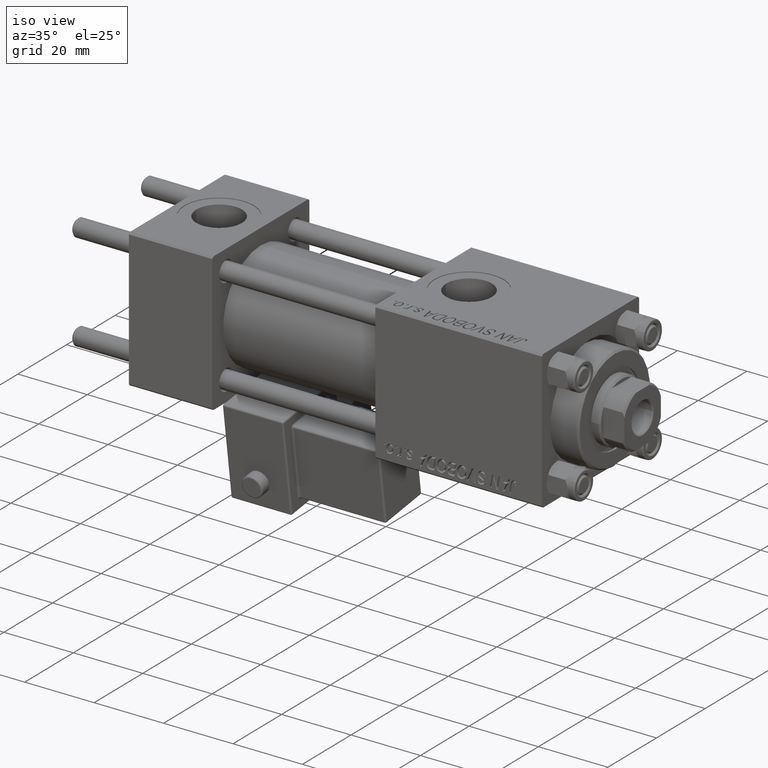
[diagram: clean part render]
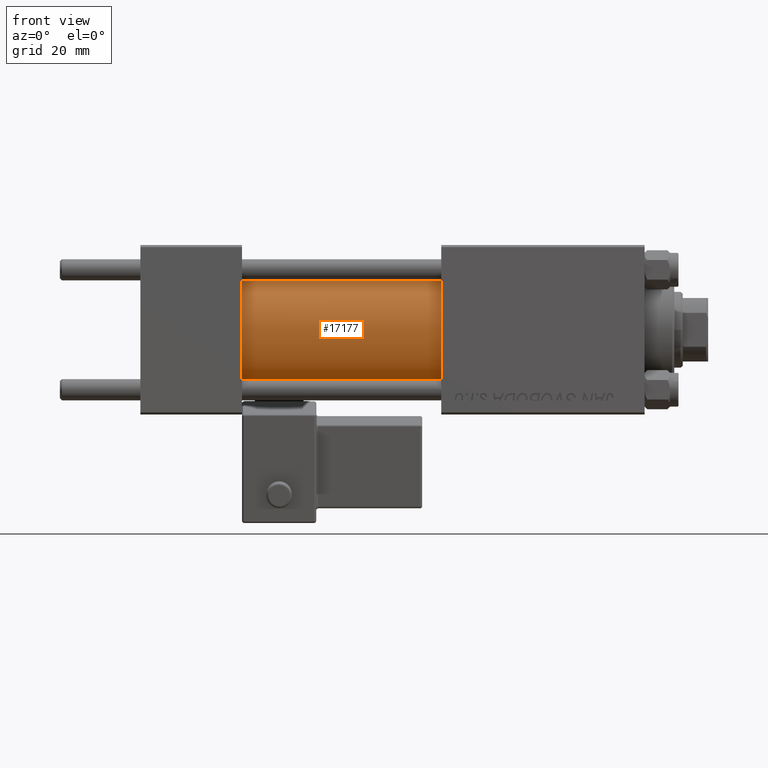
[diagram: tour spotlight — one face highlighted and labeled with its STEP entity id]
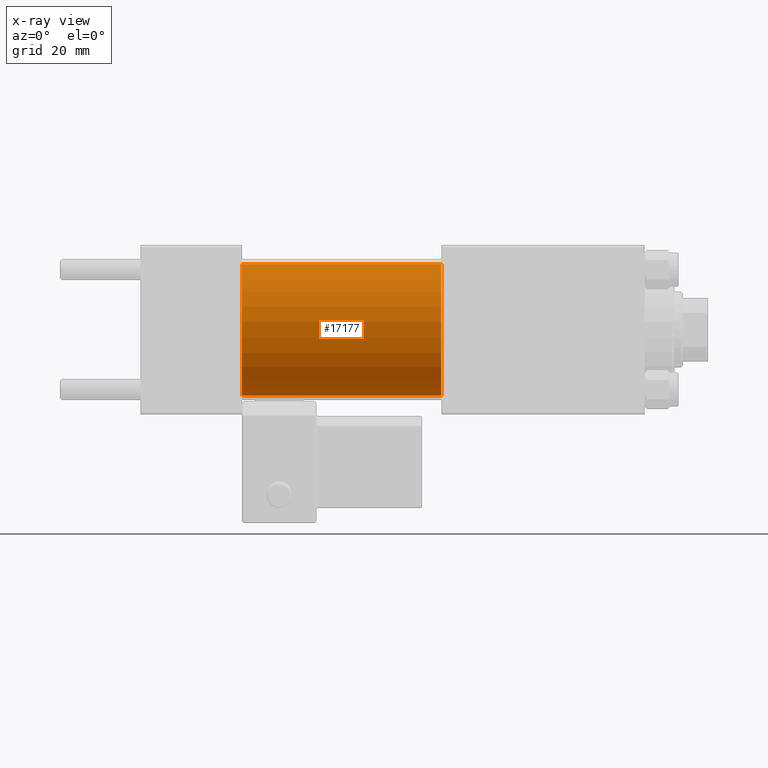
[diagram: x-ray of the same camera — body ghosted, this tour face saturated]
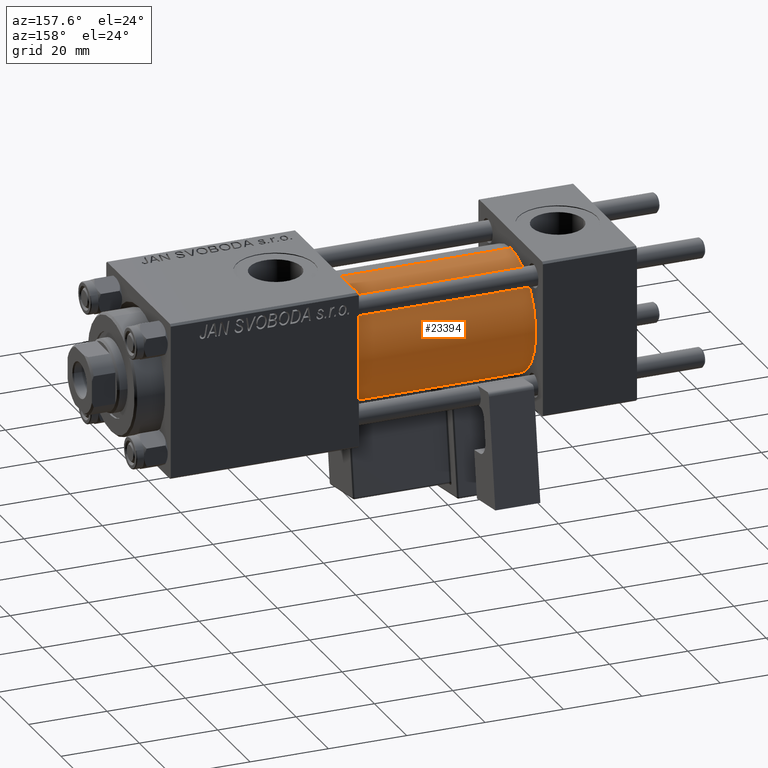
[diagram: tour spotlight — one face highlighted and labeled with its STEP entity id]
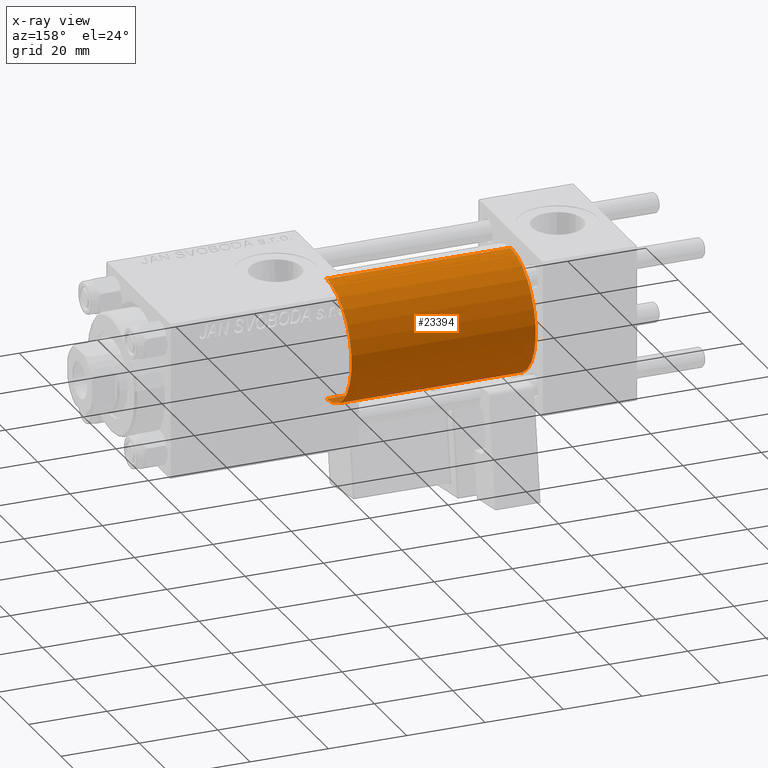
[diagram: x-ray of the same camera — body ghosted, this tour face saturated]
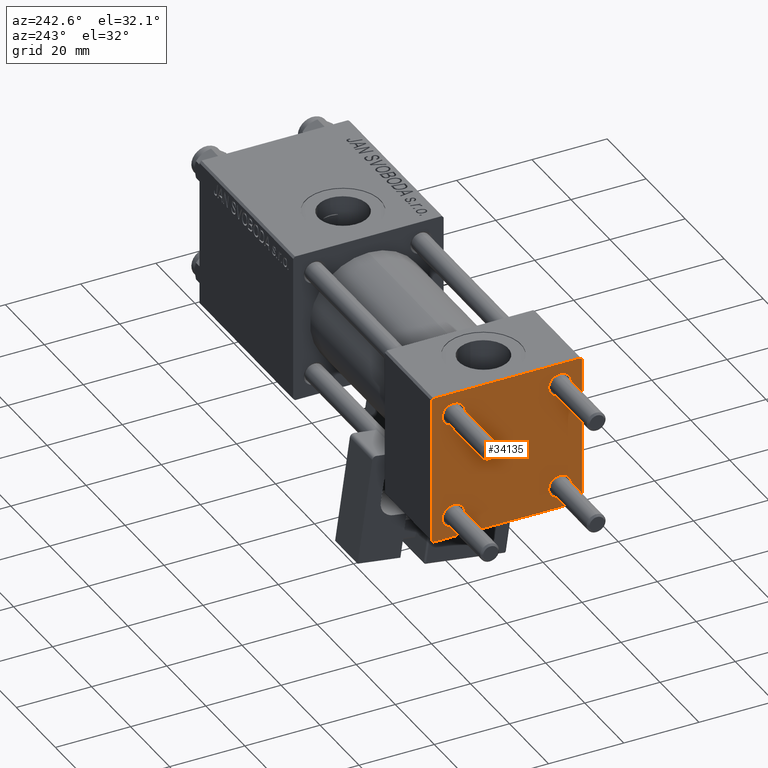
[diagram: tour spotlight — one face highlighted and labeled with its STEP entity id]
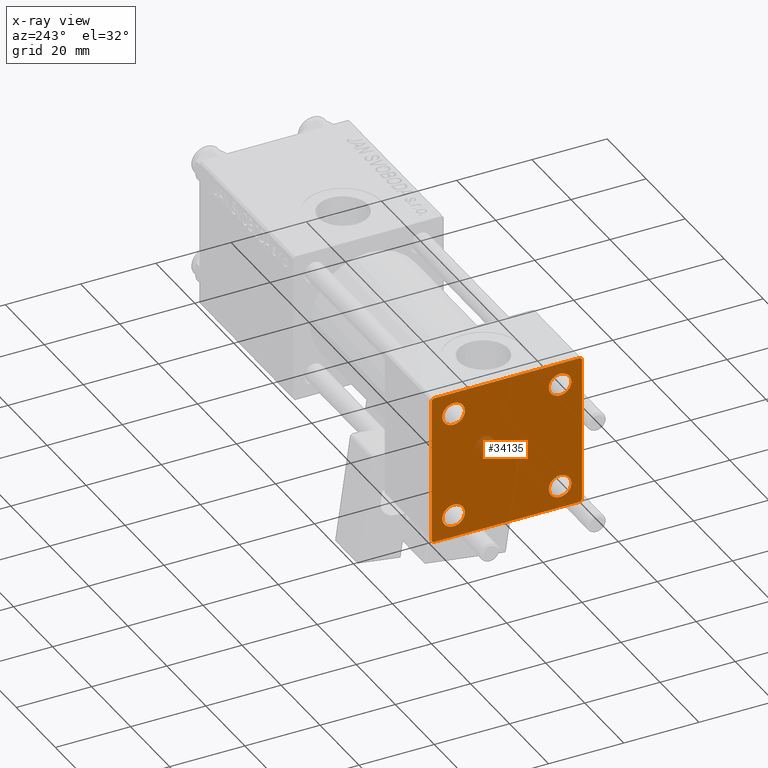
[diagram: x-ray of the same camera — body ghosted, this tour face saturated]
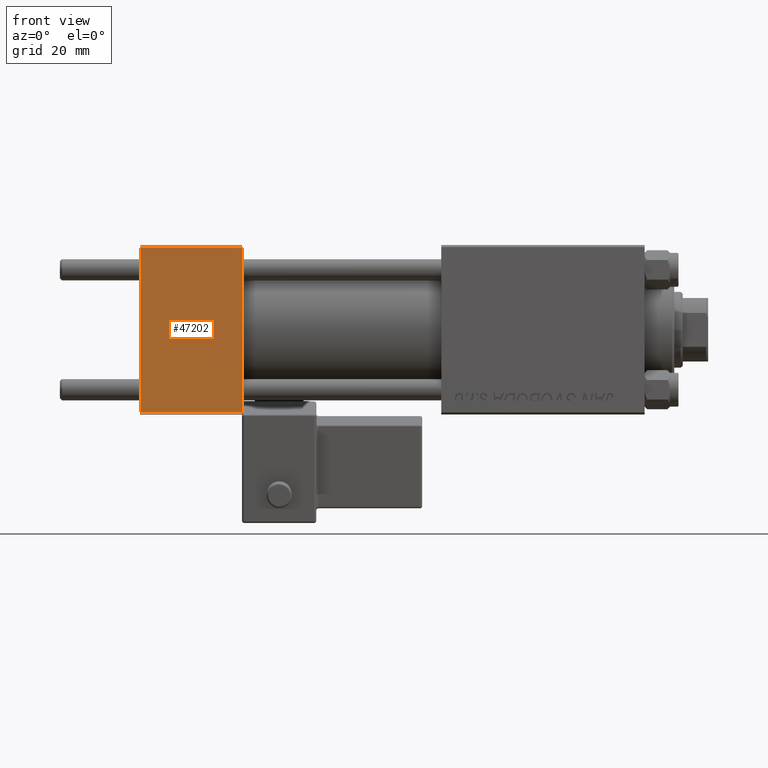
[diagram: tour spotlight — one face highlighted and labeled with its STEP entity id]
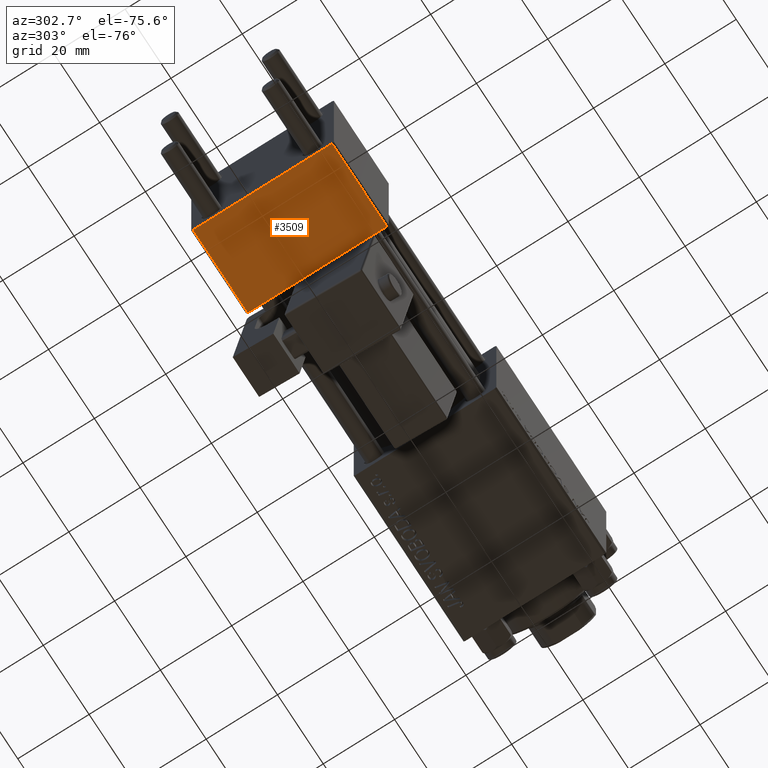
[diagram: tour spotlight — one face highlighted and labeled with its STEP entity id]
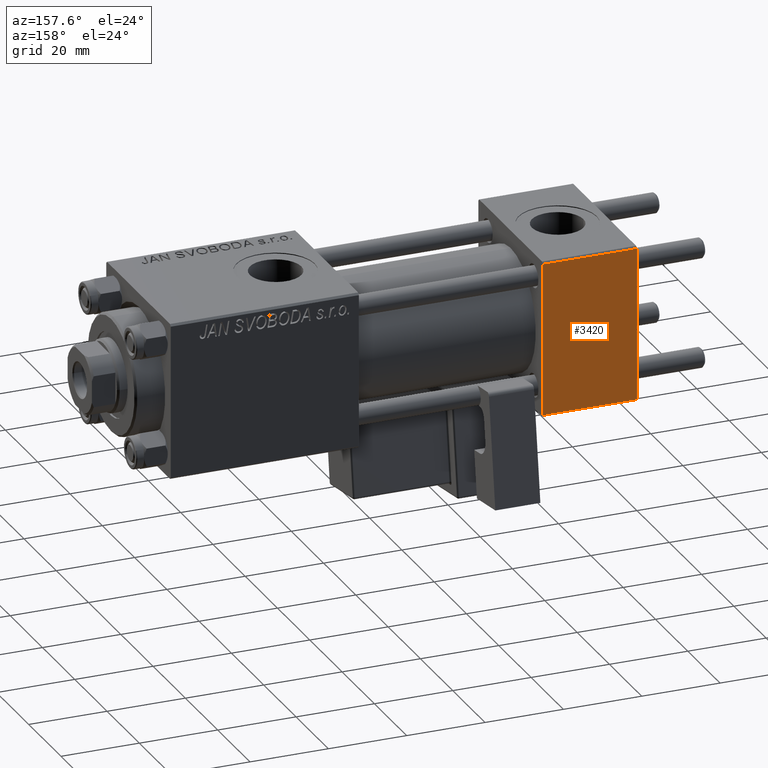
[diagram: tour spotlight — one face highlighted and labeled with its STEP entity id]
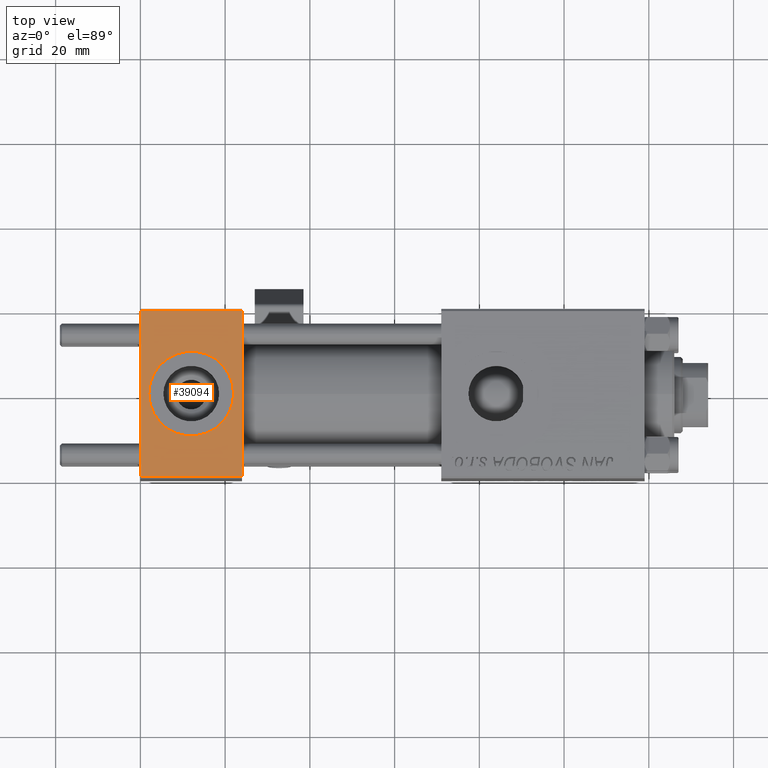
[diagram: tour spotlight — one face highlighted and labeled with its STEP entity id]
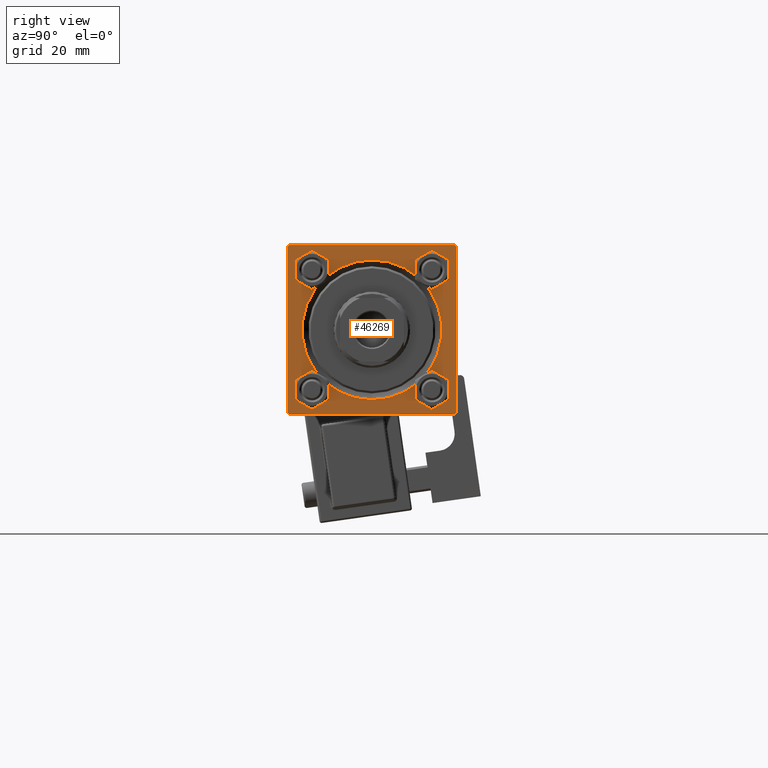
[diagram: tour spotlight — one face highlighted and labeled with its STEP entity id]
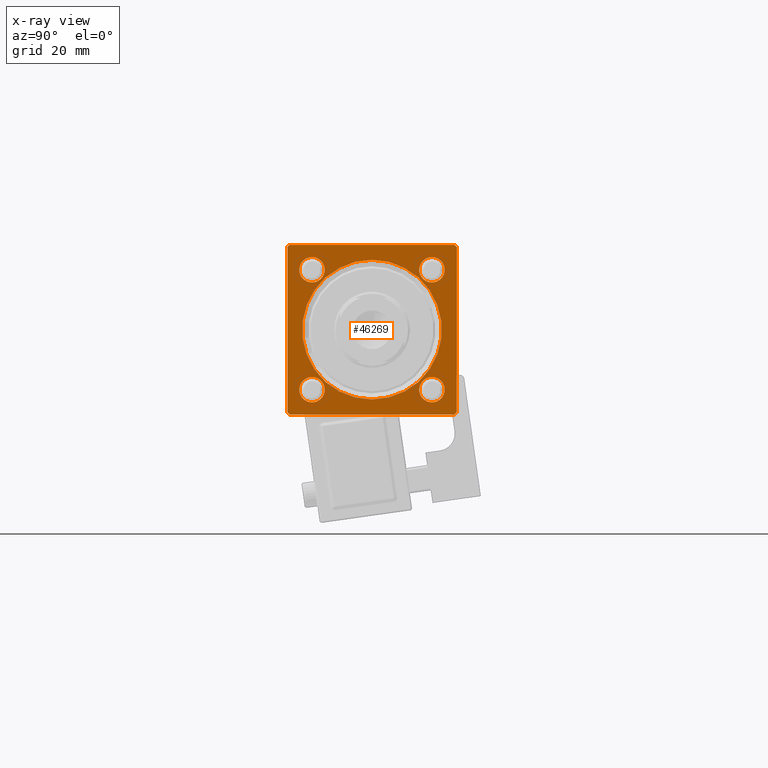
[diagram: x-ray of the same camera — body ghosted, this tour face saturated]
A machine part: a face-by-face anatomy tour. The part has 1207 B-rep faces; the first image is the clean iso view, then the 8 largest visible faces are spotlighted one at a time (largest first), each with its STEP entity span.

Face 1 — front view, entity #17177. An x-ray twin of the same camera follows (body ghosted, this face saturated) — the face is partly hidden behind the body. In plain terms, the highlighted cylindrical surface (partial cylindrical patch) has radius 15.5 mm, axis along (-1, -0, -0).
Definition (entity closure, byte-faithful):
#2293 = DIRECTION ( 'NONE',  ( -1.000000000000000000, -0.000000000000000000, -0.000000000000000000 ) ) ;
#5472 = CARTESIAN_POINT ( 'NONE',  ( 71.00000000000001421, 0.000000000000000000, 0.000000000000000000 ) ) ;
#6336 = CARTESIAN_POINT ( 'NONE',  ( 24.00000000000000000, 0.000000000000000000, 15.50000000000000000 ) ) ;
#7775 = CIRCLE ( 'NONE', #43846, 15.50000000000000000 ) ;
#8959 = EDGE_CURVE ( 'NONE', #27346, #49787, #7775, .T. ) ;
#9940 = CARTESIAN_POINT ( 'NONE',  ( 71.00000000000001421, 1.898202538678397557E-15, -15.50000000000000000 ) ) ;
#11467 = DIRECTION ( 'NONE',  ( 1.000000000000000000, 0.000000000000000000, 0.000000000000000000 ) ) ;
#12575 = AXIS2_PLACEMENT_3D ( 'NONE', #5472, #2293, #33553 ) ;
#13594 = CYLINDRICAL_SURFACE ( 'NONE', #12575, 15.50000000000000000 ) ;
#13769 = DIRECTION ( 'NONE',  ( -1.000000000000000000, -0.000000000000000000, -0.000000000000000000 ) ) ;
#14039 = ORIENTED_EDGE ( 'NONE', *, *, #19758, .F. ) ;
#14819 = CARTESIAN_POINT ( 'NONE',  ( 24.00000000000000000, 1.898202538678397557E-15, -15.50000000000000000 ) ) ;
#14871 = CARTESIAN_POINT ( 'NONE',  ( 24.00000000000000000, 0.000000000000000000, 0.000000000000000000 ) ) ;
#17177 = ADVANCED_FACE ( 'NONE', ( #41462 ), #13594, .T. ) ;
#18467 = CARTESIAN_POINT ( 'NONE',  ( 71.00000000000001421, 0.000000000000000000, 15.50000000000000000 ) ) ;
#19758 = EDGE_CURVE ( 'NONE', #48128, #19796, #38598, .T. ) ;
#19796 = VERTEX_POINT ( 'NONE', #47126 ) ;
#20109 = ORIENTED_EDGE ( 'NONE', *, *, #38588, .F. ) ;
#20785 = ORIENTED_EDGE ( 'NONE', *, *, #8959, .T. ) ;
#21512 = LINE ( 'NONE', #9940, #33597 ) ;
#24381 = CARTESIAN_POINT ( 'NONE',  ( 71.00000000000001421, 0.000000000000000000, 15.50000000000000000 ) ) ;
#27346 = VERTEX_POINT ( 'NONE', #6336 ) ;
#29275 = EDGE_LOOP ( 'NONE', ( #20109, #14039, #37625, #20785 ) ) ;
#30039 = DIRECTION ( 'NONE',  ( 0.000000000000000000, 0.000000000000000000, -1.000000000000000000 ) ) ;
#30903 = DIRECTION ( 'NONE',  ( 0.000000000000000000, 0.000000000000000000, 1.000000000000000000 ) ) ;
#33553 = DIRECTION ( 'NONE',  ( 0.000000000000000000, 0.000000000000000000, 1.000000000000000000 ) ) ;
#33597 = VECTOR ( 'NONE', #37029, 1000.000000000000000 ) ;
#37029 = DIRECTION ( 'NONE',  ( -1.000000000000000000, -0.000000000000000000, -0.000000000000000000 ) ) ;
#37625 = ORIENTED_EDGE ( 'NONE', *, *, #40391, .T. ) ;
#37739 = AXIS2_PLACEMENT_3D ( 'NONE', #38715, #41885, #30039 ) ;
#38588 = EDGE_CURVE ( 'NONE', #19796, #49787, #21512, .T. ) ;
#38598 = CIRCLE ( 'NONE', #37739, 15.50000000000000000 ) ;
#38715 = CARTESIAN_POINT ( 'NONE',  ( 71.00000000000001421, 0.000000000000000000, 0.000000000000000000 ) ) ;
#40391 = EDGE_CURVE ( 'NONE', #48128, #27346, #45570, .T. ) ;
#41462 = FACE_OUTER_BOUND ( 'NONE', #29275, .T. ) ;
#41885 = DIRECTION ( 'NONE',  ( 1.000000000000000000, 0.000000000000000000, 0.000000000000000000 ) ) ;
#43733 = VECTOR ( 'NONE', #13769, 1000.000000000000000 ) ;
#43846 = AXIS2_PLACEMENT_3D ( 'NONE', #14871, #11467, #30903 ) ;
#45570 = LINE ( 'NONE', #18467, #43733 ) ;
#47126 = CARTESIAN_POINT ( 'NONE',  ( 71.00000000000001421, 1.898202538678397557E-15, -15.50000000000000000 ) ) ;
#48128 = VERTEX_POINT ( 'NONE', #24381 ) ;
#49787 = VERTEX_POINT ( 'NONE', #14819 ) ;

Face 2 — auxiliary view, entity #23394. An x-ray twin of the same camera follows (body ghosted, this face saturated) — the face is partly hidden behind the body. In plain terms, the highlighted cylindrical surface (partial cylindrical patch) has radius 15.5 mm, axis along (-1, -0, -0).
Definition (entity closure, byte-faithful):
#1647 = ORIENTED_EDGE ( 'NONE', *, *, #6476, .F. ) ;
#3208 = CYLINDRICAL_SURFACE ( 'NONE', #11853, 15.50000000000000000 ) ;
#5509 = CARTESIAN_POINT ( 'NONE',  ( 24.00000000000000000, 0.000000000000000000, 0.000000000000000000 ) ) ;
#6336 = CARTESIAN_POINT ( 'NONE',  ( 24.00000000000000000, 0.000000000000000000, 15.50000000000000000 ) ) ;
#6476 = EDGE_CURVE ( 'NONE', #19796, #48128, #7657, .T. ) ;
#7657 = CIRCLE ( 'NONE', #14358, 15.50000000000000000 ) ;
#9940 = CARTESIAN_POINT ( 'NONE',  ( 71.00000000000001421, 1.898202538678397557E-15, -15.50000000000000000 ) ) ;
#11853 = AXIS2_PLACEMENT_3D ( 'NONE', #47074, #18955, #46566 ) ;
#13769 = DIRECTION ( 'NONE',  ( -1.000000000000000000, -0.000000000000000000, -0.000000000000000000 ) ) ;
#14358 = AXIS2_PLACEMENT_3D ( 'NONE', #43053, #50676, #22534 ) ;
#14819 = CARTESIAN_POINT ( 'NONE',  ( 24.00000000000000000, 1.898202538678397557E-15, -15.50000000000000000 ) ) ;
#15066 = ORIENTED_EDGE ( 'NONE', *, *, #38588, .T. ) ;
#18467 = CARTESIAN_POINT ( 'NONE',  ( 71.00000000000001421, 0.000000000000000000, 15.50000000000000000 ) ) ;
#18955 = DIRECTION ( 'NONE',  ( -1.000000000000000000, -0.000000000000000000, -0.000000000000000000 ) ) ;
#19796 = VERTEX_POINT ( 'NONE', #47126 ) ;
#21512 = LINE ( 'NONE', #9940, #33597 ) ;
#22534 = DIRECTION ( 'NONE',  ( 0.000000000000000000, 0.000000000000000000, -1.000000000000000000 ) ) ;
#23394 = ADVANCED_FACE ( 'NONE', ( #46814 ), #3208, .T. ) ;
#24381 = CARTESIAN_POINT ( 'NONE',  ( 71.00000000000001421, 0.000000000000000000, 15.50000000000000000 ) ) ;
#27346 = VERTEX_POINT ( 'NONE', #6336 ) ;
#27643 = EDGE_CURVE ( 'NONE', #49787, #27346, #46401, .T. ) ;
#32311 = EDGE_LOOP ( 'NONE', ( #1647, #15066, #34383, #39902 ) ) ;
#33597 = VECTOR ( 'NONE', #37029, 1000.000000000000000 ) ;
#34383 = ORIENTED_EDGE ( 'NONE', *, *, #27643, .T. ) ;
#37029 = DIRECTION ( 'NONE',  ( -1.000000000000000000, -0.000000000000000000, -0.000000000000000000 ) ) ;
#38588 = EDGE_CURVE ( 'NONE', #19796, #49787, #21512, .T. ) ;
#39902 = ORIENTED_EDGE ( 'NONE', *, *, #40391, .F. ) ;
#40391 = EDGE_CURVE ( 'NONE', #48128, #27346, #45570, .T. ) ;
#43053 = CARTESIAN_POINT ( 'NONE',  ( 71.00000000000001421, 0.000000000000000000, 0.000000000000000000 ) ) ;
#43733 = VECTOR ( 'NONE', #13769, 1000.000000000000000 ) ;
#45570 = LINE ( 'NONE', #18467, #43733 ) ;
#46401 = CIRCLE ( 'NONE', #50610, 15.50000000000000000 ) ;
#46566 = DIRECTION ( 'NONE',  ( 0.000000000000000000, 0.000000000000000000, 1.000000000000000000 ) ) ;
#46669 = DIRECTION ( 'NONE',  ( 1.000000000000000000, 0.000000000000000000, 0.000000000000000000 ) ) ;
#46814 = FACE_OUTER_BOUND ( 'NONE', #32311, .T. ) ;
#47074 = CARTESIAN_POINT ( 'NONE',  ( 71.00000000000001421, 0.000000000000000000, 0.000000000000000000 ) ) ;
#47126 = CARTESIAN_POINT ( 'NONE',  ( 71.00000000000001421, 1.898202538678397557E-15, -15.50000000000000000 ) ) ;
#48128 = VERTEX_POINT ( 'NONE', #24381 ) ;
#49628 = DIRECTION ( 'NONE',  ( 0.000000000000000000, 0.000000000000000000, 1.000000000000000000 ) ) ;
#49787 = VERTEX_POINT ( 'NONE', #14819 ) ;
#50610 = AXIS2_PLACEMENT_3D ( 'NONE', #5509, #46669, #49628 ) ;
#50676 = DIRECTION ( 'NONE',  ( 1.000000000000000000, 0.000000000000000000, 0.000000000000000000 ) ) ;

Face 3 — auxiliary view, entity #34135. An x-ray twin of the same camera follows (body ghosted, this face saturated) — the face is partly hidden behind the body. In plain terms, the highlighted planar face has unit normal (-1, 0, 0).
Definition (entity closure, byte-faithful):
#91 = CARTESIAN_POINT ( 'NONE',  ( 0.000000000000000000, -14.14999999999999503, -14.15000000000000391 ) ) ;
#675 = VERTEX_POINT ( 'NONE', #10638 ) ;
#874 = AXIS2_PLACEMENT_3D ( 'NONE', #48139, #23954, #9497 ) ;
#1052 = VERTEX_POINT ( 'NONE', #17026 ) ;
#1295 = DIRECTION ( 'NONE',  ( 0.000000000000000000, 0.7071067811865425767, -0.7071067811865525687 ) ) ;
#2224 = CARTESIAN_POINT ( 'NONE',  ( 0.000000000000000000, -20.00000000000000355, 19.99999999999998934 ) ) ;
#2661 = CARTESIAN_POINT ( 'NONE',  ( 0.000000000000000000, 0.000000000000000000, 0.000000000000000000 ) ) ;
#2933 = FACE_OUTER_BOUND ( 'NONE', #46616, .T. ) ;
#3003 = CARTESIAN_POINT ( 'NONE',  ( 0.000000000000000000, -14.14999999999999503, -11.15000000000000391 ) ) ;
#3187 = FACE_BOUND ( 'NONE', #12297, .T. ) ;
#3279 = DIRECTION ( 'NONE',  ( 1.000000000000000000, 0.000000000000000000, 0.000000000000000000 ) ) ;
#3709 = VERTEX_POINT ( 'NONE', #32994 ) ;
#4303 = DIRECTION ( 'NONE',  ( 0.000000000000000000, 0.000000000000000000, 1.000000000000000000 ) ) ;
#4359 = CIRCLE ( 'NONE', #37066, 3.000000000000000888 ) ;
#4649 = CARTESIAN_POINT ( 'NONE',  ( 0.000000000000000000, -14.14999999999999503, 17.15000000000000568 ) ) ;
#5946 = CARTESIAN_POINT ( 'NONE',  ( -0.000000000000000000, 19.74999999999986855, -19.75000000000014211 ) ) ;
#6201 = AXIS2_PLACEMENT_3D ( 'NONE', #30860, #34812, #46648 ) ;
#6215 = EDGE_CURVE ( 'NONE', #1052, #7799, #13538, .T. ) ;
#6589 = DIRECTION ( 'NONE',  ( 1.000000000000000000, 0.000000000000000000, 0.000000000000000000 ) ) ;
#7001 = ORIENTED_EDGE ( 'NONE', *, *, #17641, .T. ) ;
#7799 = VERTEX_POINT ( 'NONE', #3003 ) ;
#8000 = VERTEX_POINT ( 'NONE', #39495 ) ;
#8751 = CIRCLE ( 'NONE', #6201, 3.000000000000000888 ) ;
#8835 = EDGE_CURVE ( 'NONE', #28650, #35294, #27481, .T. ) ;
#9497 = DIRECTION ( 'NONE',  ( 0.000000000000000000, 0.000000000000000000, 1.000000000000000000 ) ) ;
#9704 = CARTESIAN_POINT ( 'NONE',  ( 0.000000000000000000, -19.75000000000020961, -19.74999999999979394 ) ) ;
#9732 = DIRECTION ( 'NONE',  ( 1.000000000000000000, 0.000000000000000000, 0.000000000000000000 ) ) ;
#9934 = EDGE_CURVE ( 'NONE', #8000, #3709, #33708, .T. ) ;
#10182 = DIRECTION ( 'NONE',  ( 1.000000000000000000, 0.000000000000000000, 0.000000000000000000 ) ) ;
#10429 = VECTOR ( 'NONE', #41284, 1000.000000000000000 ) ;
#10537 = CARTESIAN_POINT ( 'NONE',  ( 0.000000000000000000, -14.14999999999999503, -14.15000000000000391 ) ) ;
#10638 = CARTESIAN_POINT ( 'NONE',  ( 0.000000000000000000, 19.50000000000000000, 20.00000000000000000 ) ) ;
#11055 = DIRECTION ( 'NONE',  ( -0.000000000000000000, 0.000000000000000000, 1.000000000000000000 ) ) ;
#12297 = EDGE_LOOP ( 'NONE', ( #48041, #15992 ) ) ;
#12485 = VERTEX_POINT ( 'NONE', #40502 ) ;
#12800 = EDGE_CURVE ( 'NONE', #675, #28650, #44648, .T. ) ;
#12872 = LINE ( 'NONE', #9704, #44598 ) ;
#13092 = AXIS2_PLACEMENT_3D ( 'NONE', #43983, #28206, #4303 ) ;
#13538 = CIRCLE ( 'NONE', #36198, 3.000000000000000888 ) ;
#15413 = ORIENTED_EDGE ( 'NONE', *, *, #37094, .T. ) ;
#15415 = VECTOR ( 'NONE', #35575, 1000.000000000000000 ) ;
#15507 = DIRECTION ( 'NONE',  ( -1.000000000000000000, 0.000000000000000000, -0.000000000000000000 ) ) ;
#15992 = ORIENTED_EDGE ( 'NONE', *, *, #6215, .T. ) ;
#17026 = CARTESIAN_POINT ( 'NONE',  ( 0.000000000000000000, -14.14999999999999503, -17.15000000000000568 ) ) ;
#17033 = CARTESIAN_POINT ( 'NONE',  ( 0.000000000000000000, 19.50000000000000711, -20.00000000000000711 ) ) ;
#17641 = EDGE_CURVE ( 'NONE', #35294, #30594, #18007, .T. ) ;
#17739 = CARTESIAN_POINT ( 'NONE',  ( 0.000000000000000000, 14.14999999999999858, -17.15000000000000213 ) ) ;
#18007 = LINE ( 'NONE', #5946, #45368 ) ;
#18659 = ORIENTED_EDGE ( 'NONE', *, *, #20969, .T. ) ;
#18745 = ORIENTED_EDGE ( 'NONE', *, *, #24324, .T. ) ;
#19779 = EDGE_LOOP ( 'NONE', ( #18659, #43284 ) ) ;
#20104 = VERTEX_POINT ( 'NONE', #21588 ) ;
#20268 = AXIS2_PLACEMENT_3D ( 'NONE', #45417, #10182, #41212 ) ;
#20419 = VERTEX_POINT ( 'NONE', #43369 ) ;
#20969 = EDGE_CURVE ( 'NONE', #20104, #26822, #24327, .T. ) ;
#21484 = CIRCLE ( 'NONE', #13092, 3.000000000000000888 ) ;
#21588 = CARTESIAN_POINT ( 'NONE',  ( 0.000000000000000000, 14.14999999999999858, -11.15000000000000036 ) ) ;
#21713 = DIRECTION ( 'NONE',  ( -0.000000000000000000, 0.7071067811865500152, 0.7071067811865451302 ) ) ;
#22677 = EDGE_LOOP ( 'NONE', ( #31371, #15413 ) ) ;
#23390 = CARTESIAN_POINT ( 'NONE',  ( 0.000000000000000000, 20.00000000000000000, -19.50000000000002132 ) ) ;
#23427 = ORIENTED_EDGE ( 'NONE', *, *, #12800, .T. ) ;
#23606 = DIRECTION ( 'NONE',  ( 1.000000000000000000, 0.000000000000000000, 0.000000000000000000 ) ) ;
#23954 = DIRECTION ( 'NONE',  ( 1.000000000000000000, 0.000000000000000000, 0.000000000000000000 ) ) ;
#24044 = EDGE_CURVE ( 'NONE', #7799, #1052, #30334, .T. ) ;
#24324 = EDGE_CURVE ( 'NONE', #3709, #8000, #4359, .T. ) ;
#24327 = CIRCLE ( 'NONE', #874, 3.000000000000000888 ) ;
#24504 = EDGE_LOOP ( 'NONE', ( #48173, #18745 ) ) ;
#25239 = CARTESIAN_POINT ( 'NONE',  ( 0.000000000000000000, 20.00000000000000000, -20.00000000000000711 ) ) ;
#25279 = VERTEX_POINT ( 'NONE', #4649 ) ;
#26822 = VERTEX_POINT ( 'NONE', #17739 ) ;
#26976 = CARTESIAN_POINT ( 'NONE',  ( 0.000000000000000000, 20.00000000000000000, 19.49999999999999289 ) ) ;
#27481 = LINE ( 'NONE', #47706, #27889 ) ;
#27889 = VECTOR ( 'NONE', #43271, 1000.000000000000000 ) ;
#28206 = DIRECTION ( 'NONE',  ( 1.000000000000000000, 0.000000000000000000, 0.000000000000000000 ) ) ;
#28587 = CARTESIAN_POINT ( 'NONE',  ( 0.000000000000000000, -20.00000000000000000, -19.49999999999999645 ) ) ;
#28650 = VERTEX_POINT ( 'NONE', #26976 ) ;
#29086 = ORIENTED_EDGE ( 'NONE', *, *, #29147, .F. ) ;
#29147 = EDGE_CURVE ( 'NONE', #675, #45260, #44230, .T. ) ;
#29748 = EDGE_CURVE ( 'NONE', #25279, #12485, #8751, .T. ) ;
#30334 = CIRCLE ( 'NONE', #40401, 3.000000000000000888 ) ;
#30594 = VERTEX_POINT ( 'NONE', #17033 ) ;
#30860 = CARTESIAN_POINT ( 'NONE',  ( 0.000000000000000000, -14.14999999999999503, 14.15000000000000391 ) ) ;
#30997 = EDGE_CURVE ( 'NONE', #30594, #20419, #38120, .T. ) ;
#31272 = VECTOR ( 'NONE', #21713, 1000.000000000000114 ) ;
#31371 = ORIENTED_EDGE ( 'NONE', *, *, #29748, .T. ) ;
#32994 = CARTESIAN_POINT ( 'NONE',  ( 0.000000000000000000, 14.14999999999999858, 11.14999999999999858 ) ) ;
#33327 = CARTESIAN_POINT ( 'NONE',  ( -0.000000000000000000, 19.75000000000013500, 19.74999999999986144 ) ) ;
#33628 = DIRECTION ( 'NONE',  ( 0.000000000000000000, 0.000000000000000000, 1.000000000000000000 ) ) ;
#33708 = CIRCLE ( 'NONE', #20268, 3.000000000000000888 ) ;
#33940 = AXIS2_PLACEMENT_3D ( 'NONE', #2661, #15507, #11055 ) ;
#34135 = ADVANCED_FACE ( 'NONE', ( #43379, #3187, #42856, #51778, #2933 ), #34965, .T. ) ;
#34812 = DIRECTION ( 'NONE',  ( 1.000000000000000000, 0.000000000000000000, 0.000000000000000000 ) ) ;
#34965 = PLANE ( 'NONE',  #33940 ) ;
#35294 = VERTEX_POINT ( 'NONE', #23390 ) ;
#35575 = DIRECTION ( 'NONE',  ( 0.000000000000000000, -1.000000000000000000, -2.602085213965210149E-16 ) ) ;
#36198 = AXIS2_PLACEMENT_3D ( 'NONE', #10537, #6589, #42074 ) ;
#36750 = CARTESIAN_POINT ( 'NONE',  ( 0.000000000000000000, 14.14999999999999858, 14.15000000000000036 ) ) ;
#37066 = AXIS2_PLACEMENT_3D ( 'NONE', #36750, #23606, #51752 ) ;
#37094 = EDGE_CURVE ( 'NONE', #12485, #25279, #21484, .T. ) ;
#37813 = DIRECTION ( 'NONE',  ( 0.000000000000000000, -0.7071067811865401342, 0.7071067811865549002 ) ) ;
#37836 = ORIENTED_EDGE ( 'NONE', *, *, #40658, .T. ) ;
#38028 = CIRCLE ( 'NONE', #41374, 3.000000000000000888 ) ;
#38120 = LINE ( 'NONE', #25239, #10429 ) ;
#38157 = CARTESIAN_POINT ( 'NONE',  ( 0.000000000000000000, -20.00000000000000355, 19.49999999999998224 ) ) ;
#38502 = DIRECTION ( 'NONE',  ( -0.000000000000000000, -0.7071067811865524577, -0.7071067811865426878 ) ) ;
#39261 = DIRECTION ( 'NONE',  ( 0.000000000000000000, 0.000000000000000000, 1.000000000000000000 ) ) ;
#39495 = CARTESIAN_POINT ( 'NONE',  ( 0.000000000000000000, 14.14999999999999858, 17.15000000000000568 ) ) ;
#40401 = AXIS2_PLACEMENT_3D ( 'NONE', #91, #3279, #39261 ) ;
#40502 = CARTESIAN_POINT ( 'NONE',  ( 0.000000000000000000, -14.14999999999999503, 11.15000000000000213 ) ) ;
#40658 = EDGE_CURVE ( 'NONE', #20419, #45143, #12872, .T. ) ;
#41212 = DIRECTION ( 'NONE',  ( 0.000000000000000000, 0.000000000000000000, 1.000000000000000000 ) ) ;
#41284 = DIRECTION ( 'NONE',  ( 0.000000000000000000, -1.000000000000000000, 1.734723475976807094E-16 ) ) ;
#41305 = ORIENTED_EDGE ( 'NONE', *, *, #48859, .F. ) ;
#41374 = AXIS2_PLACEMENT_3D ( 'NONE', #45732, #9732, #33628 ) ;
#42074 = DIRECTION ( 'NONE',  ( 0.000000000000000000, 0.000000000000000000, 1.000000000000000000 ) ) ;
#42602 = VERTEX_POINT ( 'NONE', #38157 ) ;
#42669 = LINE ( 'NONE', #2224, #49889 ) ;
#42856 = FACE_BOUND ( 'NONE', #19779, .T. ) ;
#43271 = DIRECTION ( 'NONE',  ( 0.000000000000000000, 0.000000000000000000, -1.000000000000000000 ) ) ;
#43284 = ORIENTED_EDGE ( 'NONE', *, *, #45011, .T. ) ;
#43369 = CARTESIAN_POINT ( 'NONE',  ( 0.000000000000000000, -19.50000000000000711, -20.00000000000000000 ) ) ;
#43379 = FACE_BOUND ( 'NONE', #22677, .T. ) ;
#43407 = EDGE_CURVE ( 'NONE', #42602, #45260, #46692, .T. ) ;
#43458 = ORIENTED_EDGE ( 'NONE', *, *, #30997, .T. ) ;
#43488 = VECTOR ( 'NONE', #1295, 999.9999999999998863 ) ;
#43983 = CARTESIAN_POINT ( 'NONE',  ( 0.000000000000000000, -14.14999999999999503, 14.15000000000000391 ) ) ;
#44230 = LINE ( 'NONE', #51863, #15415 ) ;
#44598 = VECTOR ( 'NONE', #37813, 1000.000000000000000 ) ;
#44648 = LINE ( 'NONE', #33327, #43488 ) ;
#45011 = EDGE_CURVE ( 'NONE', #26822, #20104, #38028, .T. ) ;
#45143 = VERTEX_POINT ( 'NONE', #28587 ) ;
#45260 = VERTEX_POINT ( 'NONE', #45922 ) ;
#45368 = VECTOR ( 'NONE', #38502, 1000.000000000000000 ) ;
#45417 = CARTESIAN_POINT ( 'NONE',  ( 0.000000000000000000, 14.14999999999999858, 14.15000000000000036 ) ) ;
#45732 = CARTESIAN_POINT ( 'NONE',  ( 0.000000000000000000, 14.14999999999999858, -14.15000000000000036 ) ) ;
#45922 = CARTESIAN_POINT ( 'NONE',  ( 0.000000000000000000, -19.49999999999999289, 19.99999999999998934 ) ) ;
#46616 = EDGE_LOOP ( 'NONE', ( #48429, #7001, #43458, #37836, #41305, #47808, #29086, #23427 ) ) ;
#46648 = DIRECTION ( 'NONE',  ( 0.000000000000000000, 0.000000000000000000, 1.000000000000000000 ) ) ;
#46692 = LINE ( 'NONE', #49850, #31272 ) ;
#47706 = CARTESIAN_POINT ( 'NONE',  ( 0.000000000000000000, 20.00000000000000000, 20.00000000000000000 ) ) ;
#47808 = ORIENTED_EDGE ( 'NONE', *, *, #43407, .T. ) ;
#48041 = ORIENTED_EDGE ( 'NONE', *, *, #24044, .T. ) ;
#48139 = CARTESIAN_POINT ( 'NONE',  ( 0.000000000000000000, 14.14999999999999858, -14.15000000000000036 ) ) ;
#48173 = ORIENTED_EDGE ( 'NONE', *, *, #9934, .T. ) ;
#48429 = ORIENTED_EDGE ( 'NONE', *, *, #8835, .T. ) ;
#48859 = EDGE_CURVE ( 'NONE', #42602, #45143, #42669, .T. ) ;
#49850 = CARTESIAN_POINT ( 'NONE',  ( -0.000000000000000000, -19.74999999999992539, 19.75000000000006395 ) ) ;
#49889 = VECTOR ( 'NONE', #51346, 1000.000000000000000 ) ;
#51346 = DIRECTION ( 'NONE',  ( 0.000000000000000000, 8.673617379884036705E-17, -1.000000000000000000 ) ) ;
#51752 = DIRECTION ( 'NONE',  ( 0.000000000000000000, 0.000000000000000000, 1.000000000000000000 ) ) ;
#51778 = FACE_BOUND ( 'NONE', #24504, .T. ) ;
#51863 = CARTESIAN_POINT ( 'NONE',  ( 0.000000000000000000, 20.00000000000000000, 20.00000000000000000 ) ) ;

Face 4 — front view, entity #47202. In plain terms, the highlighted planar face has unit normal (0, 1, 0).
Definition (entity closure, byte-faithful):
#521 = EDGE_LOOP ( 'NONE', ( #1924, #19279, #46560, #23183 ) ) ;
#1924 = ORIENTED_EDGE ( 'NONE', *, *, #48859, .T. ) ;
#2224 = CARTESIAN_POINT ( 'NONE',  ( 0.000000000000000000, -20.00000000000000355, 19.99999999999998934 ) ) ;
#2401 = CARTESIAN_POINT ( 'NONE',  ( 24.00000000000000000, -20.00000000000000355, 19.49999999999998224 ) ) ;
#5316 = CARTESIAN_POINT ( 'NONE',  ( 24.00000000000000000, -20.00000000000000355, 19.99999999999998934 ) ) ;
#6861 = DIRECTION ( 'NONE',  ( -1.000000000000000000, 0.000000000000000000, 0.000000000000000000 ) ) ;
#8078 = EDGE_CURVE ( 'NONE', #27614, #38458, #36846, .T. ) ;
#8135 = CARTESIAN_POINT ( 'NONE',  ( 24.00000000000000000, -20.00000000000000000, -19.49999999999999645 ) ) ;
#8678 = CARTESIAN_POINT ( 'NONE',  ( 24.00000000000000000, -20.00000000000000000, -19.49999999999999645 ) ) ;
#10919 = CARTESIAN_POINT ( 'NONE',  ( 24.00000000000000000, -20.00000000000000355, 19.49999999999998224 ) ) ;
#17376 = DIRECTION ( 'NONE',  ( 0.000000000000000000, 8.673617379884036705E-17, -1.000000000000000000 ) ) ;
#19279 = ORIENTED_EDGE ( 'NONE', *, *, #22479, .T. ) ;
#22214 = EDGE_CURVE ( 'NONE', #27614, #42602, #33933, .T. ) ;
#22479 = EDGE_CURVE ( 'NONE', #45143, #38458, #45450, .T. ) ;
#23183 = ORIENTED_EDGE ( 'NONE', *, *, #22214, .T. ) ;
#24661 = AXIS2_PLACEMENT_3D ( 'NONE', #40442, #48844, #24664 ) ;
#24664 = DIRECTION ( 'NONE',  ( 0.000000000000000000, -8.673617379884036705E-17, 1.000000000000000000 ) ) ;
#24688 = DIRECTION ( 'NONE',  ( 1.000000000000000000, 0.000000000000000000, 0.000000000000000000 ) ) ;
#25342 = VECTOR ( 'NONE', #17376, 1000.000000000000000 ) ;
#27614 = VERTEX_POINT ( 'NONE', #10919 ) ;
#28587 = CARTESIAN_POINT ( 'NONE',  ( 0.000000000000000000, -20.00000000000000000, -19.49999999999999645 ) ) ;
#28606 = PLANE ( 'NONE',  #24661 ) ;
#33933 = LINE ( 'NONE', #2401, #35302 ) ;
#35302 = VECTOR ( 'NONE', #6861, 1000.000000000000000 ) ;
#36846 = LINE ( 'NONE', #5316, #25342 ) ;
#37819 = VECTOR ( 'NONE', #24688, 1000.000000000000000 ) ;
#38157 = CARTESIAN_POINT ( 'NONE',  ( 0.000000000000000000, -20.00000000000000355, 19.49999999999998224 ) ) ;
#38458 = VERTEX_POINT ( 'NONE', #8135 ) ;
#40442 = CARTESIAN_POINT ( 'NONE',  ( 24.00000000000000000, -20.00000000000000355, 19.99999999999998934 ) ) ;
#42602 = VERTEX_POINT ( 'NONE', #38157 ) ;
#42669 = LINE ( 'NONE', #2224, #49889 ) ;
#45143 = VERTEX_POINT ( 'NONE', #28587 ) ;
#45450 = LINE ( 'NONE', #8678, #37819 ) ;
#46560 = ORIENTED_EDGE ( 'NONE', *, *, #8078, .F. ) ;
#47202 = ADVANCED_FACE ( 'NONE', ( #48578 ), #28606, .F. ) ;
#48578 = FACE_OUTER_BOUND ( 'NONE', #521, .T. ) ;
#48844 = DIRECTION ( 'NONE',  ( -0.000000000000000000, 1.000000000000000000, 8.673617379884036705E-17 ) ) ;
#48859 = EDGE_CURVE ( 'NONE', #42602, #45143, #42669, .T. ) ;
#49889 = VECTOR ( 'NONE', #51346, 1000.000000000000000 ) ;
#51346 = DIRECTION ( 'NONE',  ( 0.000000000000000000, 8.673617379884036705E-17, -1.000000000000000000 ) ) ;

Face 5 — auxiliary view, entity #3509. In plain terms, the highlighted planar face has unit normal (0, -0, -1).
Definition (entity closure, byte-faithful):
#598 = LINE ( 'NONE', #22300, #46511 ) ;
#1588 = VECTOR ( 'NONE', #30825, 1000.000000000000000 ) ;
#2423 = DIRECTION ( 'NONE',  ( -1.000000000000000000, 0.000000000000000000, 0.000000000000000000 ) ) ;
#3509 = ADVANCED_FACE ( 'NONE', ( #21577 ), #29967, .T. ) ;
#3535 = ORIENTED_EDGE ( 'NONE', *, *, #50114, .T. ) ;
#4662 = VECTOR ( 'NONE', #2423, 1000.000000000000000 ) ;
#8975 = EDGE_LOOP ( 'NONE', ( #36485, #26148, #43337, #3535 ) ) ;
#10305 = CARTESIAN_POINT ( 'NONE',  ( 0.000000000000000000, -19.50000000000000711, -20.00000000000000000 ) ) ;
#10429 = VECTOR ( 'NONE', #41284, 1000.000000000000000 ) ;
#14796 = CARTESIAN_POINT ( 'NONE',  ( 24.00000000000000000, 20.00000000000000000, -20.00000000000000711 ) ) ;
#14946 = EDGE_CURVE ( 'NONE', #28172, #17836, #50817, .T. ) ;
#17033 = CARTESIAN_POINT ( 'NONE',  ( 0.000000000000000000, 19.50000000000000711, -20.00000000000000711 ) ) ;
#17836 = VERTEX_POINT ( 'NONE', #29004 ) ;
#20419 = VERTEX_POINT ( 'NONE', #43369 ) ;
#21577 = FACE_OUTER_BOUND ( 'NONE', #8975, .T. ) ;
#22300 = CARTESIAN_POINT ( 'NONE',  ( 24.00000000000000000, 19.50000000000000711, -20.00000000000000711 ) ) ;
#25239 = CARTESIAN_POINT ( 'NONE',  ( 0.000000000000000000, 20.00000000000000000, -20.00000000000000711 ) ) ;
#26148 = ORIENTED_EDGE ( 'NONE', *, *, #48178, .T. ) ;
#28172 = VERTEX_POINT ( 'NONE', #38195 ) ;
#28950 = DIRECTION ( 'NONE',  ( 0.000000000000000000, -1.734723475976806848E-16, -1.000000000000000000 ) ) ;
#29004 = CARTESIAN_POINT ( 'NONE',  ( 24.00000000000000000, -19.50000000000000711, -20.00000000000000000 ) ) ;
#29967 = PLANE ( 'NONE',  #34424 ) ;
#30594 = VERTEX_POINT ( 'NONE', #17033 ) ;
#30825 = DIRECTION ( 'NONE',  ( 0.000000000000000000, -1.000000000000000000, 1.734723475976807094E-16 ) ) ;
#30997 = EDGE_CURVE ( 'NONE', #30594, #20419, #38120, .T. ) ;
#34424 = AXIS2_PLACEMENT_3D ( 'NONE', #49963, #28950, #44997 ) ;
#36485 = ORIENTED_EDGE ( 'NONE', *, *, #30997, .F. ) ;
#38120 = LINE ( 'NONE', #25239, #10429 ) ;
#38195 = CARTESIAN_POINT ( 'NONE',  ( 24.00000000000000000, 19.50000000000000711, -20.00000000000000711 ) ) ;
#41284 = DIRECTION ( 'NONE',  ( 0.000000000000000000, -1.000000000000000000, 1.734723475976807094E-16 ) ) ;
#43337 = ORIENTED_EDGE ( 'NONE', *, *, #14946, .T. ) ;
#43369 = CARTESIAN_POINT ( 'NONE',  ( 0.000000000000000000, -19.50000000000000711, -20.00000000000000000 ) ) ;
#44997 = DIRECTION ( 'NONE',  ( 0.000000000000000000, 1.000000000000000000, -1.734723475976806848E-16 ) ) ;
#45963 = DIRECTION ( 'NONE',  ( 1.000000000000000000, 0.000000000000000000, 0.000000000000000000 ) ) ;
#46511 = VECTOR ( 'NONE', #45963, 1000.000000000000000 ) ;
#48178 = EDGE_CURVE ( 'NONE', #30594, #28172, #598, .T. ) ;
#49963 = CARTESIAN_POINT ( 'NONE',  ( 24.00000000000000000, 20.00000000000000000, -20.00000000000000711 ) ) ;
#50114 = EDGE_CURVE ( 'NONE', #17836, #20419, #50511, .T. ) ;
#50511 = LINE ( 'NONE', #10305, #4662 ) ;
#50817 = LINE ( 'NONE', #14796, #1588 ) ;

Face 6 — auxiliary view, entity #3420. In plain terms, the highlighted planar face has unit normal (0, 1, 0).
Definition (entity closure, byte-faithful):
#3420 = ADVANCED_FACE ( 'NONE', ( #8198 ), #20790, .T. ) ;
#8119 = LINE ( 'NONE', #40158, #32316 ) ;
#8198 = FACE_OUTER_BOUND ( 'NONE', #45585, .T. ) ;
#8368 = DIRECTION ( 'NONE',  ( 0.000000000000000000, 0.000000000000000000, -1.000000000000000000 ) ) ;
#8835 = EDGE_CURVE ( 'NONE', #28650, #35294, #27481, .T. ) ;
#9356 = CARTESIAN_POINT ( 'NONE',  ( 24.00000000000000000, 20.00000000000000000, -19.50000000000002132 ) ) ;
#10254 = VERTEX_POINT ( 'NONE', #9356 ) ;
#11845 = CARTESIAN_POINT ( 'NONE',  ( 24.00000000000000000, 20.00000000000000000, 19.49999999999999289 ) ) ;
#12258 = EDGE_CURVE ( 'NONE', #28650, #23462, #35268, .T. ) ;
#12550 = ORIENTED_EDGE ( 'NONE', *, *, #12258, .T. ) ;
#15767 = LINE ( 'NONE', #34979, #47154 ) ;
#18491 = ORIENTED_EDGE ( 'NONE', *, *, #50390, .T. ) ;
#19228 = DIRECTION ( 'NONE',  ( 1.000000000000000000, 0.000000000000000000, 0.000000000000000000 ) ) ;
#20166 = AXIS2_PLACEMENT_3D ( 'NONE', #20272, #47877, #24206 ) ;
#20272 = CARTESIAN_POINT ( 'NONE',  ( 24.00000000000000000, 20.00000000000000000, 20.00000000000000000 ) ) ;
#20790 = PLANE ( 'NONE',  #20166 ) ;
#23390 = CARTESIAN_POINT ( 'NONE',  ( 0.000000000000000000, 20.00000000000000000, -19.50000000000002132 ) ) ;
#23393 = DIRECTION ( 'NONE',  ( -1.000000000000000000, 0.000000000000000000, 0.000000000000000000 ) ) ;
#23462 = VERTEX_POINT ( 'NONE', #11845 ) ;
#24206 = DIRECTION ( 'NONE',  ( 0.000000000000000000, -0.000000000000000000, 1.000000000000000000 ) ) ;
#26976 = CARTESIAN_POINT ( 'NONE',  ( 0.000000000000000000, 20.00000000000000000, 19.49999999999999289 ) ) ;
#27481 = LINE ( 'NONE', #47706, #27889 ) ;
#27889 = VECTOR ( 'NONE', #43271, 1000.000000000000000 ) ;
#28650 = VERTEX_POINT ( 'NONE', #26976 ) ;
#28729 = ORIENTED_EDGE ( 'NONE', *, *, #8835, .F. ) ;
#31584 = CARTESIAN_POINT ( 'NONE',  ( 24.00000000000000000, 20.00000000000000000, 19.49999999999999289 ) ) ;
#32316 = VECTOR ( 'NONE', #8368, 1000.000000000000000 ) ;
#32509 = ORIENTED_EDGE ( 'NONE', *, *, #41765, .T. ) ;
#34979 = CARTESIAN_POINT ( 'NONE',  ( 24.00000000000000000, 20.00000000000000000, -19.50000000000002132 ) ) ;
#35268 = LINE ( 'NONE', #31584, #40142 ) ;
#35294 = VERTEX_POINT ( 'NONE', #23390 ) ;
#40142 = VECTOR ( 'NONE', #19228, 1000.000000000000000 ) ;
#40158 = CARTESIAN_POINT ( 'NONE',  ( 24.00000000000000000, 20.00000000000000000, 20.00000000000000000 ) ) ;
#41765 = EDGE_CURVE ( 'NONE', #10254, #35294, #15767, .T. ) ;
#43271 = DIRECTION ( 'NONE',  ( 0.000000000000000000, 0.000000000000000000, -1.000000000000000000 ) ) ;
#45585 = EDGE_LOOP ( 'NONE', ( #18491, #32509, #28729, #12550 ) ) ;
#47154 = VECTOR ( 'NONE', #23393, 1000.000000000000000 ) ;
#47706 = CARTESIAN_POINT ( 'NONE',  ( 0.000000000000000000, 20.00000000000000000, 20.00000000000000000 ) ) ;
#47877 = DIRECTION ( 'NONE',  ( -0.000000000000000000, 1.000000000000000000, 0.000000000000000000 ) ) ;
#50390 = EDGE_CURVE ( 'NONE', #23462, #10254, #8119, .T. ) ;

Face 7 — top view, entity #39094. In plain terms, the highlighted planar face has unit normal (0, 0, -1).
Definition (entity closure, byte-faithful):
#280 = ORIENTED_EDGE ( 'NONE', *, *, #21752, .F. ) ;
#465 = DIRECTION ( 'NONE',  ( 1.000000000000000000, 0.000000000000000000, 0.000000000000000000 ) ) ;
#675 = VERTEX_POINT ( 'NONE', #10638 ) ;
#2167 = VERTEX_POINT ( 'NONE', #19044 ) ;
#3961 = CARTESIAN_POINT ( 'NONE',  ( 24.00000000000000000, 20.00000000000000000, 20.00000000000000000 ) ) ;
#4602 = FACE_OUTER_BOUND ( 'NONE', #31606, .T. ) ;
#4717 = EDGE_CURVE ( 'NONE', #29271, #2167, #27750, .T. ) ;
#5181 = VERTEX_POINT ( 'NONE', #15562 ) ;
#5902 = VECTOR ( 'NONE', #32684, 1000.000000000000000 ) ;
#6802 = CIRCLE ( 'NONE', #46217, 9.999999999999998224 ) ;
#8298 = EDGE_CURVE ( 'NONE', #48538, #5181, #43889, .T. ) ;
#10638 = CARTESIAN_POINT ( 'NONE',  ( 0.000000000000000000, 19.50000000000000000, 20.00000000000000000 ) ) ;
#10732 = DIRECTION ( 'NONE',  ( -1.000000000000000000, 0.000000000000000000, 0.000000000000000000 ) ) ;
#14617 = CARTESIAN_POINT ( 'NONE',  ( 24.00000000000000000, 19.50000000000000000, 20.00000000000000000 ) ) ;
#14672 = LINE ( 'NONE', #30702, #16685 ) ;
#14865 = ORIENTED_EDGE ( 'NONE', *, *, #15316, .T. ) ;
#15316 = EDGE_CURVE ( 'NONE', #48538, #675, #14672, .T. ) ;
#15415 = VECTOR ( 'NONE', #35575, 1000.000000000000000 ) ;
#15562 = CARTESIAN_POINT ( 'NONE',  ( 24.00000000000000000, -19.49999999999999289, 19.99999999999998934 ) ) ;
#16653 = LINE ( 'NONE', #40582, #5902 ) ;
#16685 = VECTOR ( 'NONE', #10732, 1000.000000000000000 ) ;
#16708 = CARTESIAN_POINT ( 'NONE',  ( 12.00000000000000000, 1.540743955509788682E-30, 19.99999999999999645 ) ) ;
#19044 = CARTESIAN_POINT ( 'NONE',  ( 22.00000000000000000, 1.540743955509788682E-30, 19.99999999999999645 ) ) ;
#20150 = CARTESIAN_POINT ( 'NONE',  ( 12.00000000000000000, 1.540743955509788682E-30, 19.99999999999999645 ) ) ;
#20858 = DIRECTION ( 'NONE',  ( 0.000000000000000000, 1.000000000000000000, 2.602085213965210149E-16 ) ) ;
#21632 = FACE_BOUND ( 'NONE', #24950, .T. ) ;
#21752 = EDGE_CURVE ( 'NONE', #2167, #29271, #6802, .T. ) ;
#22721 = AXIS2_PLACEMENT_3D ( 'NONE', #16708, #45110, #33516 ) ;
#23284 = ORIENTED_EDGE ( 'NONE', *, *, #29147, .T. ) ;
#23905 = DIRECTION ( 'NONE',  ( 0.000000000000000000, -1.000000000000000000, -2.602085213965210149E-16 ) ) ;
#24950 = EDGE_LOOP ( 'NONE', ( #280, #44828 ) ) ;
#25058 = DIRECTION ( 'NONE',  ( 0.000000000000000000, 2.602085213965210149E-16, -1.000000000000000000 ) ) ;
#27750 = CIRCLE ( 'NONE', #22721, 9.999999999999998224 ) ;
#29147 = EDGE_CURVE ( 'NONE', #675, #45260, #44230, .T. ) ;
#29271 = VERTEX_POINT ( 'NONE', #37133 ) ;
#30702 = CARTESIAN_POINT ( 'NONE',  ( 0.000000000000000000, 19.50000000000000000, 20.00000000000000000 ) ) ;
#31606 = EDGE_LOOP ( 'NONE', ( #23284, #33040, #42731, #14865 ) ) ;
#32684 = DIRECTION ( 'NONE',  ( 1.000000000000000000, 0.000000000000000000, 0.000000000000000000 ) ) ;
#33040 = ORIENTED_EDGE ( 'NONE', *, *, #39191, .T. ) ;
#33516 = DIRECTION ( 'NONE',  ( 1.000000000000000000, 0.000000000000000000, 0.000000000000000000 ) ) ;
#33730 = CARTESIAN_POINT ( 'NONE',  ( 24.00000000000000000, 20.00000000000000000, 20.00000000000000000 ) ) ;
#34579 = VECTOR ( 'NONE', #23905, 1000.000000000000000 ) ;
#35575 = DIRECTION ( 'NONE',  ( 0.000000000000000000, -1.000000000000000000, -2.602085213965210149E-16 ) ) ;
#37133 = CARTESIAN_POINT ( 'NONE',  ( 2.000000000000003553, 1.224646799147354440E-15, 19.99999999999999645 ) ) ;
#39094 = ADVANCED_FACE ( 'NONE', ( #21632, #4602 ), #40845, .F. ) ;
#39191 = EDGE_CURVE ( 'NONE', #45260, #5181, #16653, .T. ) ;
#40582 = CARTESIAN_POINT ( 'NONE',  ( 24.00000000000000000, -19.49999999999999289, 19.99999999999998934 ) ) ;
#40845 = PLANE ( 'NONE',  #49543 ) ;
#40914 = DIRECTION ( 'NONE',  ( 0.000000000000000000, 0.000000000000000000, 1.000000000000000000 ) ) ;
#42731 = ORIENTED_EDGE ( 'NONE', *, *, #8298, .F. ) ;
#43889 = LINE ( 'NONE', #3961, #34579 ) ;
#44230 = LINE ( 'NONE', #51863, #15415 ) ;
#44828 = ORIENTED_EDGE ( 'NONE', *, *, #4717, .F. ) ;
#45110 = DIRECTION ( 'NONE',  ( 0.000000000000000000, 0.000000000000000000, 1.000000000000000000 ) ) ;
#45260 = VERTEX_POINT ( 'NONE', #45922 ) ;
#45922 = CARTESIAN_POINT ( 'NONE',  ( 0.000000000000000000, -19.49999999999999289, 19.99999999999998934 ) ) ;
#46217 = AXIS2_PLACEMENT_3D ( 'NONE', #20150, #40914, #465 ) ;
#48538 = VERTEX_POINT ( 'NONE', #14617 ) ;
#49543 = AXIS2_PLACEMENT_3D ( 'NONE', #33730, #25058, #20858 ) ;
#51863 = CARTESIAN_POINT ( 'NONE',  ( 0.000000000000000000, 20.00000000000000000, 20.00000000000000000 ) ) ;

Face 8 — right view, entity #46269. An x-ray twin of the same camera follows (body ghosted, this face saturated) — the face is partly hidden behind the body. In plain terms, the highlighted planar face has unit normal (-1, 0, 0).
Definition (entity closure, byte-faithful):
#226 = VECTOR ( 'NONE', #9853, 999.9999999999998863 ) ;
#261 = DIRECTION ( 'NONE',  ( -1.000000000000000000, -0.000000000000000000, -0.000000000000000000 ) ) ;
#439 = DIRECTION ( 'NONE',  ( -1.000000000000000000, 0.000000000000000000, -0.000000000000000000 ) ) ;
#1172 = AXIS2_PLACEMENT_3D ( 'NONE', #26599, #14518, #47354 ) ;
#1213 = FACE_BOUND ( 'NONE', #25185, .T. ) ;
#1770 = CARTESIAN_POINT ( 'NONE',  ( 119.0000000000000142, 14.15000000000000036, -14.15000000000000036 ) ) ;
#2439 = VERTEX_POINT ( 'NONE', #9694 ) ;
#2477 = EDGE_LOOP ( 'NONE', ( #19457, #32971 ) ) ;
#2799 = DIRECTION ( 'NONE',  ( 0.000000000000000000, 8.673617379884036705E-17, -1.000000000000000000 ) ) ;
#2822 = AXIS2_PLACEMENT_3D ( 'NONE', #29057, #439, #9098 ) ;
#2886 = VERTEX_POINT ( 'NONE', #34055 ) ;
#2979 = VECTOR ( 'NONE', #44691, 1000.000000000000000 ) ;
#3062 = LINE ( 'NONE', #39298, #21867 ) ;
#3484 = ORIENTED_EDGE ( 'NONE', *, *, #34271, .T. ) ;
#3835 = CIRCLE ( 'NONE', #18061, 3.000000000000004441 ) ;
#4247 = DIRECTION ( 'NONE',  ( -1.000000000000000000, -0.000000000000000000, -0.000000000000000000 ) ) ;
#4513 = DIRECTION ( 'NONE',  ( 0.000000000000000000, 0.000000000000000000, 1.000000000000000000 ) ) ;
#4547 = CARTESIAN_POINT ( 'NONE',  ( 119.0000000000000142, 0.000000000000000000, 0.000000000000000000 ) ) ;
#5058 = DIRECTION ( 'NONE',  ( -1.000000000000000000, -0.000000000000000000, -0.000000000000000000 ) ) ;
#5376 = CIRCLE ( 'NONE', #1172, 3.000000000000000888 ) ;
#5423 = FACE_BOUND ( 'NONE', #15074, .T. ) ;
#5685 = CIRCLE ( 'NONE', #9872, 16.50000000000001421 ) ;
#6154 = CARTESIAN_POINT ( 'NONE',  ( 119.0000000000000142, 19.99999999999999645, -19.50000000000000000 ) ) ;
#6158 = CARTESIAN_POINT ( 'NONE',  ( 119.0000000000000142, -19.50000000000002487, -20.00000000000000000 ) ) ;
#6677 = ORIENTED_EDGE ( 'NONE', *, *, #36030, .T. ) ;
#6732 = CARTESIAN_POINT ( 'NONE',  ( 119.0000000000000142, 19.49999999999996803, 20.00000000000000000 ) ) ;
#7233 = VERTEX_POINT ( 'NONE', #46014 ) ;
#7900 = VERTEX_POINT ( 'NONE', #6158 ) ;
#8035 = VERTEX_POINT ( 'NONE', #17635 ) ;
#8552 = VECTOR ( 'NONE', #26113, 999.9999999999998863 ) ;
#8761 = EDGE_LOOP ( 'NONE', ( #45075, #14817, #14864, #32839, #27425, #20682, #21869, #48422 ) ) ;
#9098 = DIRECTION ( 'NONE',  ( -0.000000000000000000, 0.000000000000000000, 1.000000000000000000 ) ) ;
#9585 = EDGE_CURVE ( 'NONE', #29043, #15661, #9604, .T. ) ;
#9604 = LINE ( 'NONE', #30065, #226 ) ;
#9694 = CARTESIAN_POINT ( 'NONE',  ( 119.0000000000000142, -14.15000000000000036, 17.14999999999997726 ) ) ;
#9739 = DIRECTION ( 'NONE',  ( -0.000000000000000000, -0.7071067811865573427, -0.7071067811865376918 ) ) ;
#9853 = DIRECTION ( 'NONE',  ( 0.000000000000000000, -0.7071067811865574537, 0.7071067811865376918 ) ) ;
#9872 = AXIS2_PLACEMENT_3D ( 'NONE', #40230, #4247, #4513 ) ;
#10836 = EDGE_CURVE ( 'NONE', #49578, #18208, #5685, .T. ) ;
#11170 = LINE ( 'NONE', #27192, #31540 ) ;
#11413 = CARTESIAN_POINT ( 'NONE',  ( 119.0000000000000142, 19.99999999999999645, 19.49999999999998579 ) ) ;
#11542 = CARTESIAN_POINT ( 'NONE',  ( 119.0000000000000142, -20.00000000000000355, 19.50000000000002487 ) ) ;
#12090 = CARTESIAN_POINT ( 'NONE',  ( 119.0000000000000142, 14.15000000000000036, -17.15000000000000568 ) ) ;
#13547 = FACE_BOUND ( 'NONE', #19326, .T. ) ;
#13884 = CARTESIAN_POINT ( 'NONE',  ( 119.0000000000000142, 19.49999999999999645, -20.00000000000000000 ) ) ;
#14455 = DIRECTION ( 'NONE',  ( -1.000000000000000000, -0.000000000000000000, -0.000000000000000000 ) ) ;
#14518 = DIRECTION ( 'NONE',  ( -1.000000000000000000, -0.000000000000000000, -0.000000000000000000 ) ) ;
#14817 = ORIENTED_EDGE ( 'NONE', *, *, #42104, .T. ) ;
#14864 = ORIENTED_EDGE ( 'NONE', *, *, #47668, .F. ) ;
#15074 = EDGE_LOOP ( 'NONE', ( #44357, #31085 ) ) ;
#15553 = AXIS2_PLACEMENT_3D ( 'NONE', #28785, #29048, #45094 ) ;
#15661 = VERTEX_POINT ( 'NONE', #6732 ) ;
#16449 = PLANE ( 'NONE',  #2822 ) ;
#16815 = LINE ( 'NONE', #33890, #2979 ) ;
#17088 = VECTOR ( 'NONE', #31592, 1000.000000000000000 ) ;
#17396 = VERTEX_POINT ( 'NONE', #6154 ) ;
#17635 = CARTESIAN_POINT ( 'NONE',  ( 119.0000000000000142, -14.15000000000000036, -17.15000000000000568 ) ) ;
#17988 = AXIS2_PLACEMENT_3D ( 'NONE', #32828, #261, #43881 ) ;
#18061 = AXIS2_PLACEMENT_3D ( 'NONE', #29537, #32975, #42601 ) ;
#18208 = VERTEX_POINT ( 'NONE', #43055 ) ;
#18897 = VECTOR ( 'NONE', #48151, 1000.000000000000114 ) ;
#19299 = DIRECTION ( 'NONE',  ( 0.000000000000000000, 0.000000000000000000, -1.000000000000000000 ) ) ;
#19318 = VERTEX_POINT ( 'NONE', #12090 ) ;
#19326 = EDGE_LOOP ( 'NONE', ( #3484, #6677 ) ) ;
#19354 = CARTESIAN_POINT ( 'NONE',  ( 119.0000000000000142, 14.15000000000000036, -11.14999999999999680 ) ) ;
#19457 = ORIENTED_EDGE ( 'NONE', *, *, #23743, .T. ) ;
#20002 = LINE ( 'NONE', #27900, #17088 ) ;
#20020 = DIRECTION ( 'NONE',  ( 0.000000000000000000, 0.000000000000000000, 1.000000000000000000 ) ) ;
#20266 = CARTESIAN_POINT ( 'NONE',  ( 119.0000000000000142, -14.15000000000000036, 11.15000000000002700 ) ) ;
#20387 = FACE_OUTER_BOUND ( 'NONE', #8761, .T. ) ;
#20682 = ORIENTED_EDGE ( 'NONE', *, *, #9585, .T. ) ;
#20890 = VERTEX_POINT ( 'NONE', #44194 ) ;
#20965 = DIRECTION ( 'NONE',  ( -1.000000000000000000, -0.000000000000000000, -0.000000000000000000 ) ) ;
#21723 = DIRECTION ( 'NONE',  ( -1.000000000000000000, -0.000000000000000000, -0.000000000000000000 ) ) ;
#21867 = VECTOR ( 'NONE', #2799, 1000.000000000000000 ) ;
#21869 = ORIENTED_EDGE ( 'NONE', *, *, #50258, .T. ) ;
#21910 = EDGE_CURVE ( 'NONE', #31292, #24619, #3062, .T. ) ;
#22096 = ORIENTED_EDGE ( 'NONE', *, *, #31437, .T. ) ;
#22234 = EDGE_LOOP ( 'NONE', ( #34861, #22096 ) ) ;
#22430 = LINE ( 'NONE', #30051, #8552 ) ;
#22766 = AXIS2_PLACEMENT_3D ( 'NONE', #1770, #21723, #44621 ) ;
#23648 = CIRCLE ( 'NONE', #39611, 16.50000000000001421 ) ;
#23743 = EDGE_CURVE ( 'NONE', #19318, #45449, #34507, .T. ) ;
#24216 = LINE ( 'NONE', #28692, #18897 ) ;
#24619 = VERTEX_POINT ( 'NONE', #51932 ) ;
#25023 = ORIENTED_EDGE ( 'NONE', *, *, #30104, .T. ) ;
#25185 = EDGE_LOOP ( 'NONE', ( #27386, #25023 ) ) ;
#26113 = DIRECTION ( 'NONE',  ( 0.000000000000000000, 0.7071067811865376918, -0.7071067811865574537 ) ) ;
#26536 = LINE ( 'NONE', #29689, #40579 ) ;
#26599 = CARTESIAN_POINT ( 'NONE',  ( 119.0000000000000142, 14.15000000000000036, 14.15000000000000036 ) ) ;
#27192 = CARTESIAN_POINT ( 'NONE',  ( 119.0000000000000142, 19.99999999999999645, 20.00000000000000000 ) ) ;
#27324 = EDGE_CURVE ( 'NONE', #47895, #2439, #47275, .T. ) ;
#27386 = ORIENTED_EDGE ( 'NONE', *, *, #50704, .T. ) ;
#27425 = ORIENTED_EDGE ( 'NONE', *, *, #38131, .F. ) ;
#27900 = CARTESIAN_POINT ( 'NONE',  ( 119.0000000000000142, 19.99999999999999645, -20.00000000000000000 ) ) ;
#27971 = AXIS2_PLACEMENT_3D ( 'NONE', #40426, #20965, #32534 ) ;
#28531 = FACE_BOUND ( 'NONE', #22234, .T. ) ;
#28692 = CARTESIAN_POINT ( 'NONE',  ( 119.0000000000000142, 19.99999999999999645, -19.50000000000000000 ) ) ;
#28785 = CARTESIAN_POINT ( 'NONE',  ( 119.0000000000000142, 14.15000000000000036, 14.15000000000000036 ) ) ;
#29043 = VERTEX_POINT ( 'NONE', #11413 ) ;
#29048 = DIRECTION ( 'NONE',  ( -1.000000000000000000, -0.000000000000000000, -0.000000000000000000 ) ) ;
#29057 = CARTESIAN_POINT ( 'NONE',  ( 119.0000000000000142, 0.000000000000000000, 0.000000000000000000 ) ) ;
#29537 = CARTESIAN_POINT ( 'NONE',  ( 119.0000000000000142, -14.15000000000000036, -14.15000000000000036 ) ) ;
#29689 = CARTESIAN_POINT ( 'NONE',  ( 119.0000000000000142, -20.00000000000000355, 19.50000000000002487 ) ) ;
#30051 = CARTESIAN_POINT ( 'NONE',  ( 119.0000000000000142, -19.50000000000002487, -20.00000000000000000 ) ) ;
#30065 = CARTESIAN_POINT ( 'NONE',  ( 119.0000000000000142, 19.49999999999996803, 20.00000000000000000 ) ) ;
#30104 = EDGE_CURVE ( 'NONE', #20890, #7233, #5376, .T. ) ;
#30475 = DIRECTION ( 'NONE',  ( 0.000000000000000000, 0.000000000000000000, 1.000000000000000000 ) ) ;
#30634 = CIRCLE ( 'NONE', #15553, 3.000000000000000888 ) ;
#31085 = ORIENTED_EDGE ( 'NONE', *, *, #10836, .T. ) ;
#31292 = VERTEX_POINT ( 'NONE', #11542 ) ;
#31437 = EDGE_CURVE ( 'NONE', #2439, #47895, #50643, .T. ) ;
#31540 = VECTOR ( 'NONE', #19299, 1000.000000000000000 ) ;
#31592 = DIRECTION ( 'NONE',  ( 0.000000000000000000, -1.000000000000000000, 0.000000000000000000 ) ) ;
#32281 = EDGE_CURVE ( 'NONE', #2886, #31292, #26536, .T. ) ;
#32534 = DIRECTION ( 'NONE',  ( 0.000000000000000000, 0.000000000000000000, 1.000000000000000000 ) ) ;
#32828 = CARTESIAN_POINT ( 'NONE',  ( 119.0000000000000142, -14.15000000000000036, -14.15000000000000036 ) ) ;
#32839 = ORIENTED_EDGE ( 'NONE', *, *, #35033, .T. ) ;
#32971 = ORIENTED_EDGE ( 'NONE', *, *, #37582, .T. ) ;
#32975 = DIRECTION ( 'NONE',  ( -1.000000000000000000, -0.000000000000000000, -0.000000000000000000 ) ) ;
#33890 = CARTESIAN_POINT ( 'NONE',  ( 119.0000000000000142, 19.99999999999999645, 20.00000000000000000 ) ) ;
#33915 = DIRECTION ( 'NONE',  ( 0.000000000000000000, 0.000000000000000000, 1.000000000000000000 ) ) ;
#34055 = CARTESIAN_POINT ( 'NONE',  ( 119.0000000000000142, -19.50000000000001776, 19.99999999999999645 ) ) ;
#34271 = EDGE_CURVE ( 'NONE', #8035, #36244, #49060, .T. ) ;
#34418 = CARTESIAN_POINT ( 'NONE',  ( 119.0000000000000142, 14.15000000000000036, -14.15000000000000036 ) ) ;
#34507 = CIRCLE ( 'NONE', #22766, 3.000000000000004441 ) ;
#34861 = ORIENTED_EDGE ( 'NONE', *, *, #27324, .T. ) ;
#34926 = CARTESIAN_POINT ( 'NONE',  ( 119.0000000000000142, 2.020667218593134678E-15, 16.50000000000001421 ) ) ;
#35033 = EDGE_CURVE ( 'NONE', #47273, #17396, #24216, .T. ) ;
#36030 = EDGE_CURVE ( 'NONE', #36244, #8035, #3835, .T. ) ;
#36244 = VERTEX_POINT ( 'NONE', #36279 ) ;
#36279 = CARTESIAN_POINT ( 'NONE',  ( 119.0000000000000142, -14.15000000000000036, -11.14999999999999680 ) ) ;
#37582 = EDGE_CURVE ( 'NONE', #45449, #19318, #47492, .T. ) ;
#38003 = AXIS2_PLACEMENT_3D ( 'NONE', #45753, #41806, #33915 ) ;
#38131 = EDGE_CURVE ( 'NONE', #29043, #17396, #11170, .T. ) ;
#39298 = CARTESIAN_POINT ( 'NONE',  ( 119.0000000000000142, -20.00000000000000355, 19.99999999999999645 ) ) ;
#39611 = AXIS2_PLACEMENT_3D ( 'NONE', #4547, #5058, #20020 ) ;
#40230 = CARTESIAN_POINT ( 'NONE',  ( 119.0000000000000142, 0.000000000000000000, 0.000000000000000000 ) ) ;
#40426 = CARTESIAN_POINT ( 'NONE',  ( 119.0000000000000142, -14.15000000000000036, 14.15000000000000036 ) ) ;
#40579 = VECTOR ( 'NONE', #9739, 1000.000000000000114 ) ;
#41806 = DIRECTION ( 'NONE',  ( -1.000000000000000000, -0.000000000000000000, -0.000000000000000000 ) ) ;
#42104 = EDGE_CURVE ( 'NONE', #24619, #7900, #22430, .T. ) ;
#42460 = AXIS2_PLACEMENT_3D ( 'NONE', #34418, #14455, #30475 ) ;
#42601 = DIRECTION ( 'NONE',  ( 0.000000000000000000, 0.000000000000000000, 1.000000000000000000 ) ) ;
#43019 = EDGE_CURVE ( 'NONE', #18208, #49578, #23648, .T. ) ;
#43055 = CARTESIAN_POINT ( 'NONE',  ( 119.0000000000000142, 0.000000000000000000, -16.50000000000001421 ) ) ;
#43881 = DIRECTION ( 'NONE',  ( 0.000000000000000000, 0.000000000000000000, 1.000000000000000000 ) ) ;
#44194 = CARTESIAN_POINT ( 'NONE',  ( 119.0000000000000142, 14.15000000000000036, 17.15000000000000568 ) ) ;
#44357 = ORIENTED_EDGE ( 'NONE', *, *, #43019, .T. ) ;
#44621 = DIRECTION ( 'NONE',  ( 0.000000000000000000, 0.000000000000000000, 1.000000000000000000 ) ) ;
#44691 = DIRECTION ( 'NONE',  ( 0.000000000000000000, -1.000000000000000000, -8.673617379884035472E-17 ) ) ;
#45075 = ORIENTED_EDGE ( 'NONE', *, *, #21910, .T. ) ;
#45094 = DIRECTION ( 'NONE',  ( 0.000000000000000000, 0.000000000000000000, 1.000000000000000000 ) ) ;
#45449 = VERTEX_POINT ( 'NONE', #19354 ) ;
#45753 = CARTESIAN_POINT ( 'NONE',  ( 119.0000000000000142, -14.15000000000000036, 14.15000000000000036 ) ) ;
#46014 = CARTESIAN_POINT ( 'NONE',  ( 119.0000000000000142, 14.15000000000000036, 11.14999999999999858 ) ) ;
#46269 = ADVANCED_FACE ( 'NONE', ( #13547, #49032, #1213, #28531, #5423, #20387 ), #16449, .F. ) ;
#47273 = VERTEX_POINT ( 'NONE', #13884 ) ;
#47275 = CIRCLE ( 'NONE', #38003, 2.999999999999973355 ) ;
#47354 = DIRECTION ( 'NONE',  ( 0.000000000000000000, 0.000000000000000000, 1.000000000000000000 ) ) ;
#47492 = CIRCLE ( 'NONE', #42460, 3.000000000000004441 ) ;
#47668 = EDGE_CURVE ( 'NONE', #47273, #7900, #20002, .T. ) ;
#47895 = VERTEX_POINT ( 'NONE', #20266 ) ;
#48151 = DIRECTION ( 'NONE',  ( -0.000000000000000000, 0.7071067811865474617, 0.7071067811865474617 ) ) ;
#48422 = ORIENTED_EDGE ( 'NONE', *, *, #32281, .T. ) ;
#49032 = FACE_BOUND ( 'NONE', #2477, .T. ) ;
#49060 = CIRCLE ( 'NONE', #17988, 3.000000000000004441 ) ;
#49578 = VERTEX_POINT ( 'NONE', #34926 ) ;
#50258 = EDGE_CURVE ( 'NONE', #15661, #2886, #16815, .T. ) ;
#50643 = CIRCLE ( 'NONE', #27971, 2.999999999999973355 ) ;
#50704 = EDGE_CURVE ( 'NONE', #7233, #20890, #30634, .T. ) ;
#51932 = CARTESIAN_POINT ( 'NONE',  ( 119.0000000000000142, -20.00000000000000000, -19.50000000000001066 ) ) ;